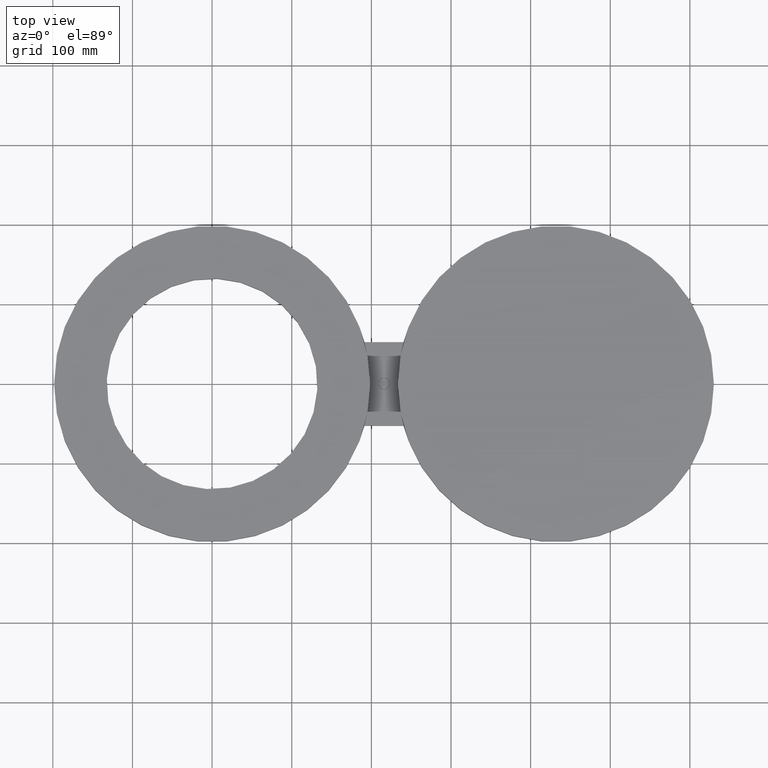
[diagram: clean part render]
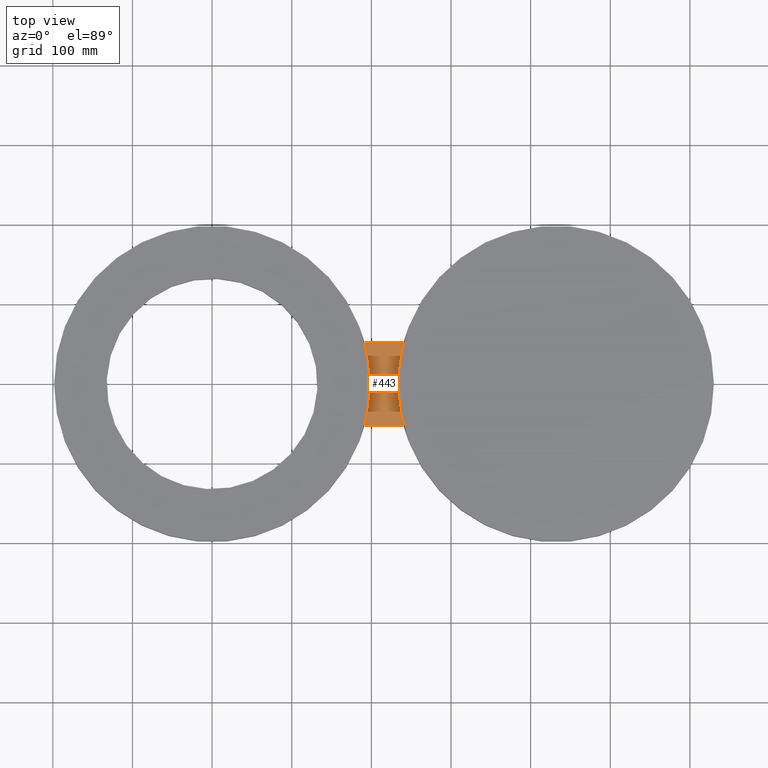
[diagram: same view with one face highlighted and labeled with its STEP entity id]
A machine part, top view. The second image highlights one B-rep face of the part: STEP entity #443.
In plain terms, the highlighted planar face has unit normal (0, 0, 1).
Its self-contained STEP definition (entity closure, byte-faithful):
#155=AXIS2_PLACEMENT_3D('Circle Axis2P3D',#153,#154,$) ;
#204=AXIS2_PLACEMENT_3D('Circle Axis2P3D',#202,#203,$) ;
#332=AXIS2_PLACEMENT_3D('Circle Axis2P3D',#330,#331,$) ;
#348=AXIS2_PLACEMENT_3D('Circle Axis2P3D',#346,#347,$) ;
#415=AXIS2_PLACEMENT_3D('Plane Axis2P3D',#412,#413,#414) ;
#427=AXIS2_PLACEMENT_3D('Circle Axis2P3D',#425,#426,$) ;
#436=AXIS2_PLACEMENT_3D('Circle Axis2P3D',#434,#435,$) ;
#150=CARTESIAN_POINT('Vertex',(7.81000000003,0.,0.517500000002)) ;
#153=CARTESIAN_POINT('Axis2P3D Location',(0.,0.,0.517500000002)) ;
#157=CARTESIAN_POINT('Vertex',(7.53342551569,2.06000000001,0.517500000002)) ;
#199=CARTESIAN_POINT('Vertex',(7.53342551569,-2.06000000001,0.517500000002)) ;
#202=CARTESIAN_POINT('Axis2P3D Location',(0.,0.,0.517500000002)) ;
#234=CARTESIAN_POINT('Vertex',(9.46657448438,-2.06000000001,0.517500000002)) ;
#237=CARTESIAN_POINT('Line Origine',(8.50000000003,-2.06000000001,0.517500000002)) ;
#301=CARTESIAN_POINT('Vertex',(9.19000000004,3.0383487087E-015,0.517500000002)) ;
#327=CARTESIAN_POINT('Vertex',(9.46657448438,2.06000000001,0.517500000002)) ;
#330=CARTESIAN_POINT('Axis2P3D Location',(17.0000000001,2.08189955856E-015,0.517500000002)) ;
#346=CARTESIAN_POINT('Axis2P3D Location',(17.0000000001,2.08189955856E-015,0.517500000002)) ;
#391=CARTESIAN_POINT('Line Origine',(8.50000000003,2.06000000001,0.517500000002)) ;
#412=CARTESIAN_POINT('Axis2P3D Location',(0.,0.,0.517500000002)) ;
#425=CARTESIAN_POINT('Axis2P3D Location',(8.50000000003,0.,0.517500000002)) ;
#429=CARTESIAN_POINT('Vertex',(8.50000000003,0.312499996876,0.517500000002)) ;
#431=CARTESIAN_POINT('Vertex',(8.50000000003,-0.312499996876,0.517500000002)) ;
#434=CARTESIAN_POINT('Axis2P3D Location',(8.50000000003,0.,0.517500000002)) ;
#154=DIRECTION('Axis2P3D Direction',(0.,0.,0.0393700787402)) ;
#203=DIRECTION('Axis2P3D Direction',(0.,0.,0.0393700787402)) ;
#238=DIRECTION('Vector Direction',(0.0393700787402,0.,0.)) ;
#331=DIRECTION('Axis2P3D Direction',(0.,0.,0.0393700787402)) ;
#347=DIRECTION('Axis2P3D Direction',(0.,0.,0.0393700787402)) ;
#392=DIRECTION('Vector Direction',(-0.0393700787402,0.,0.)) ;
#413=DIRECTION('Axis2P3D Direction',(0.,0.,0.0393700787402)) ;
#414=DIRECTION('Axis2P3D XDirection',(0.0393700787402,0.,0.)) ;
#426=DIRECTION('Axis2P3D Direction',(0.,0.,0.0393700787402)) ;
#435=DIRECTION('Axis2P3D Direction',(0.,0.,0.0393700787402)) ;
#239=VECTOR('Line Direction',#238,0.0393700787402) ;
#393=VECTOR('Line Direction',#392,0.0393700787402) ;
#418=ORIENTED_EDGE('',*,*,#350,.F.) ;
#419=ORIENTED_EDGE('',*,*,#334,.F.) ;
#420=ORIENTED_EDGE('',*,*,#395,.T.) ;
#421=ORIENTED_EDGE('',*,*,#159,.F.) ;
#422=ORIENTED_EDGE('',*,*,#206,.F.) ;
#423=ORIENTED_EDGE('',*,*,#241,.T.) ;
#440=ORIENTED_EDGE('',*,*,#433,.F.) ;
#441=ORIENTED_EDGE('',*,*,#438,.F.) ;
#442=FACE_BOUND('',#439,.T.) ;
#443=ADVANCED_FACE('PartBody',(#424,#442),#416,.T.) ;
#156=CIRCLE('generated circle',#155,7.81000000003) ;
#205=CIRCLE('generated circle',#204,7.81000000003) ;
#333=CIRCLE('generated circle',#332,7.81000000003) ;
#349=CIRCLE('generated circle',#348,7.81000000003) ;
#428=CIRCLE('generated circle',#427,0.312499996876) ;
#437=CIRCLE('generated circle',#436,0.312499996876) ;
#159=EDGE_CURVE('',#151,#158,#156,.T.) ;
#206=EDGE_CURVE('',#200,#151,#205,.T.) ;
#241=EDGE_CURVE('',#200,#235,#240,.T.) ;
#334=EDGE_CURVE('',#328,#302,#333,.T.) ;
#350=EDGE_CURVE('',#302,#235,#349,.T.) ;
#395=EDGE_CURVE('',#328,#158,#394,.T.) ;
#433=EDGE_CURVE('',#430,#432,#428,.T.) ;
#438=EDGE_CURVE('',#432,#430,#437,.T.) ;
#417=EDGE_LOOP('',(#418,#419,#420,#421,#422,#423)) ;
#439=EDGE_LOOP('',(#440,#441)) ;
#424=FACE_OUTER_BOUND('',#417,.T.) ;
#240=LINE('Line',#237,#239) ;
#394=LINE('Line',#391,#393) ;
#416=PLANE('',#415) ;
#151=VERTEX_POINT('',#150) ;
#158=VERTEX_POINT('',#157) ;
#200=VERTEX_POINT('',#199) ;
#235=VERTEX_POINT('',#234) ;
#302=VERTEX_POINT('',#301) ;
#328=VERTEX_POINT('',#327) ;
#430=VERTEX_POINT('',#429) ;
#432=VERTEX_POINT('',#431) ;